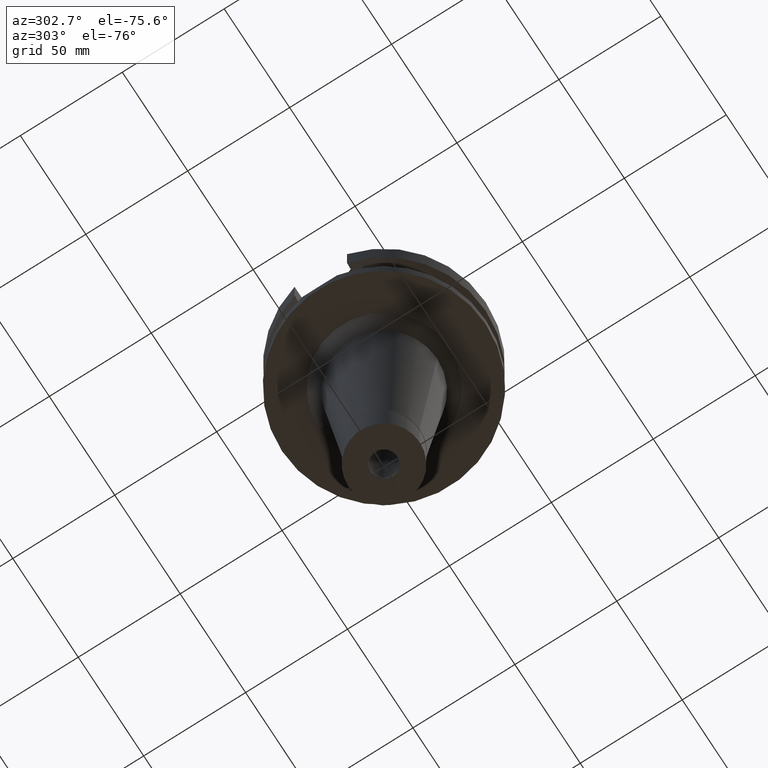
[diagram: clean part render]
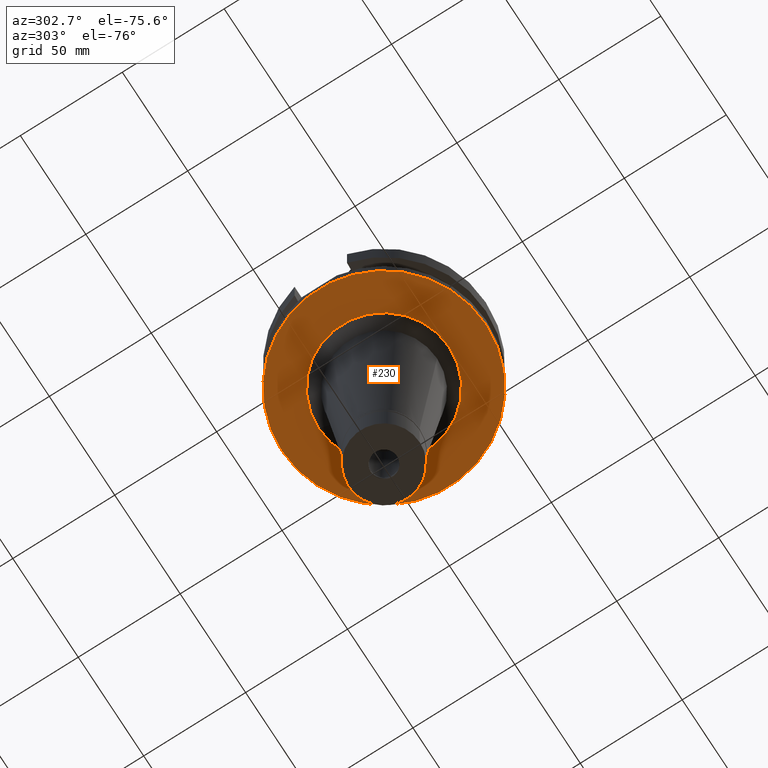
[diagram: same view with one face highlighted and labeled with its STEP entity id]
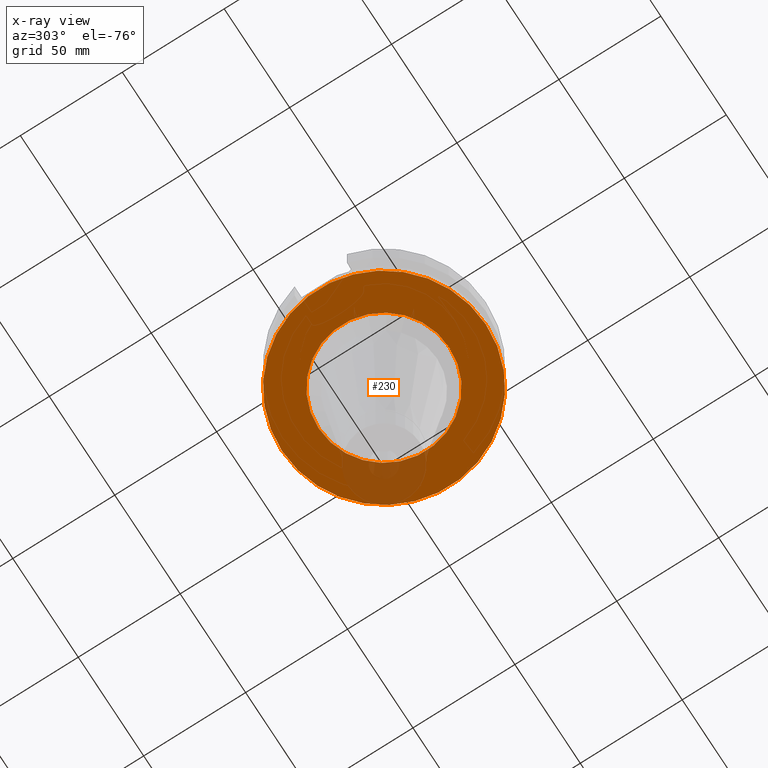
[diagram: x-ray of the same camera — body ghosted, the highlighted face saturated]
A machine part, auxiliary view. The second image highlights one B-rep face of the part: STEP entity #230.
The next image is the same camera in x-ray: the body ghosted, the highlighted face saturated — about 12% of this face is hidden behind the body in this view.
In plain terms, the highlighted planar face has unit normal (0, 0, -1).
Its self-contained STEP definition (entity closure, byte-faithful):
#59 = FACE_OUTER_BOUND ( 'NONE', #2218, .T. ) ;
#143 = DIRECTION ( 'NONE',  ( 0.0000000000000000000, 1.000000000000000000, 0.0000000000000000000 ) ) ;
#230 = ADVANCED_FACE ( 'NONE', ( #59, #320 ), #2702, .T. ) ;
#275 = EDGE_LOOP ( 'NONE', ( #587, #428 ) ) ;
#320 = FACE_BOUND ( 'NONE', #275, .T. ) ;
#391 = DIRECTION ( 'NONE',  ( 0.0000000000000000000, 0.0000000000000000000, 1.000000000000000000 ) ) ;
#428 = ORIENTED_EDGE ( 'NONE', *, *, #2285, .F. ) ;
#506 = CARTESIAN_POINT ( 'NONE',  ( 0.0000000000000000000, 0.0000000000000000000, -38.00000000000000000 ) ) ;
#530 = DIRECTION ( 'NONE',  ( 0.0000000000000000000, 1.000000000000000000, 0.0000000000000000000 ) ) ;
#541 = CARTESIAN_POINT ( 'NONE',  ( 0.0000000000000000000, -32.04764242647999595, -38.00000000000000000 ) ) ;
#573 = EDGE_CURVE ( 'NONE', #659, #1108, #578, .T. ) ;
#578 = CIRCLE ( 'NONE', #1921, 50.00000000000000000 ) ;
#587 = ORIENTED_EDGE ( 'NONE', *, *, #1971, .F. ) ;
#659 = VERTEX_POINT ( 'NONE', #921 ) ;
#729 = CARTESIAN_POINT ( 'NONE',  ( 0.0000000000000000000, 2.630602556908000006E-14, -38.00000000000000000 ) ) ;
#812 = CARTESIAN_POINT ( 'NONE',  ( 0.0000000000000000000, 32.04764242647999595, -38.00000000000000000 ) ) ;
#859 = ORIENTED_EDGE ( 'NONE', *, *, #2284, .F. ) ;
#886 = AXIS2_PLACEMENT_3D ( 'NONE', #2683, #1234, #530 ) ;
#921 = CARTESIAN_POINT ( 'NONE',  ( 0.0000000000000000000, -50.00000000000000000, -38.00000000000000000 ) ) ;
#1102 = DIRECTION ( 'NONE',  ( 0.0000000000000000000, -1.000000000000000000, 0.0000000000000000000 ) ) ;
#1108 = VERTEX_POINT ( 'NONE', #3126 ) ;
#1186 = CIRCLE ( 'NONE', #3146, 50.00000000000000000 ) ;
#1234 = DIRECTION ( 'NONE',  ( 0.0000000000000000000, 0.0000000000000000000, -1.000000000000000000 ) ) ;
#1289 = CIRCLE ( 'NONE', #3092, 32.04764242647999595 ) ;
#1547 = CIRCLE ( 'NONE', #886, 32.04764242647999595 ) ;
#1568 = DIRECTION ( 'NONE',  ( 0.0000000000000000000, 0.0000000000000000000, -1.000000000000000000 ) ) ;
#1584 = CARTESIAN_POINT ( 'NONE',  ( 0.0000000000000000000, 0.0000000000000000000, -38.00000000000000000 ) ) ;
#1604 = CARTESIAN_POINT ( 'NONE',  ( 0.0000000000000000000, 2.630602556908000006E-14, -38.00000000000000000 ) ) ;
#1763 = DIRECTION ( 'NONE',  ( 0.0000000000000000000, 0.0000000000000000000, -1.000000000000000000 ) ) ;
#1794 = DIRECTION ( 'NONE',  ( 0.0000000000000000000, -1.000000000000000000, 0.0000000000000000000 ) ) ;
#1921 = AXIS2_PLACEMENT_3D ( 'NONE', #729, #2648, #2660 ) ;
#1971 = EDGE_CURVE ( 'NONE', #2897, #2393, #1547, .T. ) ;
#2218 = EDGE_LOOP ( 'NONE', ( #859, #2383 ) ) ;
#2284 = EDGE_CURVE ( 'NONE', #1108, #659, #1186, .T. ) ;
#2285 = EDGE_CURVE ( 'NONE', #2393, #2897, #1289, .T. ) ;
#2383 = ORIENTED_EDGE ( 'NONE', *, *, #573, .F. ) ;
#2393 = VERTEX_POINT ( 'NONE', #541 ) ;
#2648 = DIRECTION ( 'NONE',  ( 0.0000000000000000000, 0.0000000000000000000, 1.000000000000000000 ) ) ;
#2660 = DIRECTION ( 'NONE',  ( 0.0000000000000000000, -1.000000000000000000, 0.0000000000000000000 ) ) ;
#2683 = CARTESIAN_POINT ( 'NONE',  ( 0.0000000000000000000, 0.0000000000000000000, -38.00000000000000000 ) ) ;
#2702 = PLANE ( 'NONE',  #2847 ) ;
#2847 = AXIS2_PLACEMENT_3D ( 'NONE', #506, #1763, #1794 ) ;
#2897 = VERTEX_POINT ( 'NONE', #812 ) ;
#3092 = AXIS2_PLACEMENT_3D ( 'NONE', #1584, #1568, #1102 ) ;
#3126 = CARTESIAN_POINT ( 'NONE',  ( 0.0000000000000000000, 50.00000000000000000, -38.00000000000000000 ) ) ;
#3146 = AXIS2_PLACEMENT_3D ( 'NONE', #1604, #391, #143 ) ;